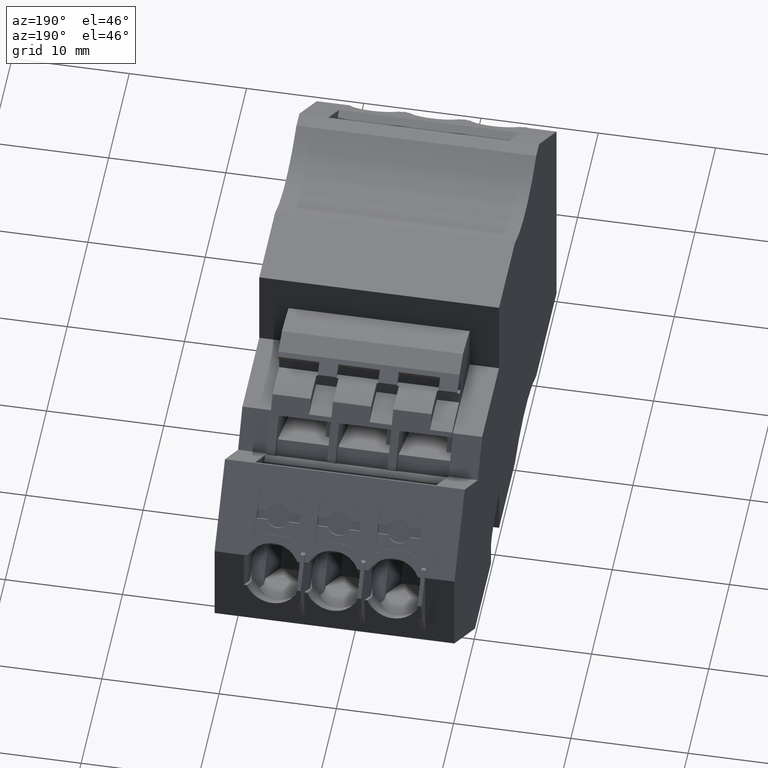
[diagram: clean part render]
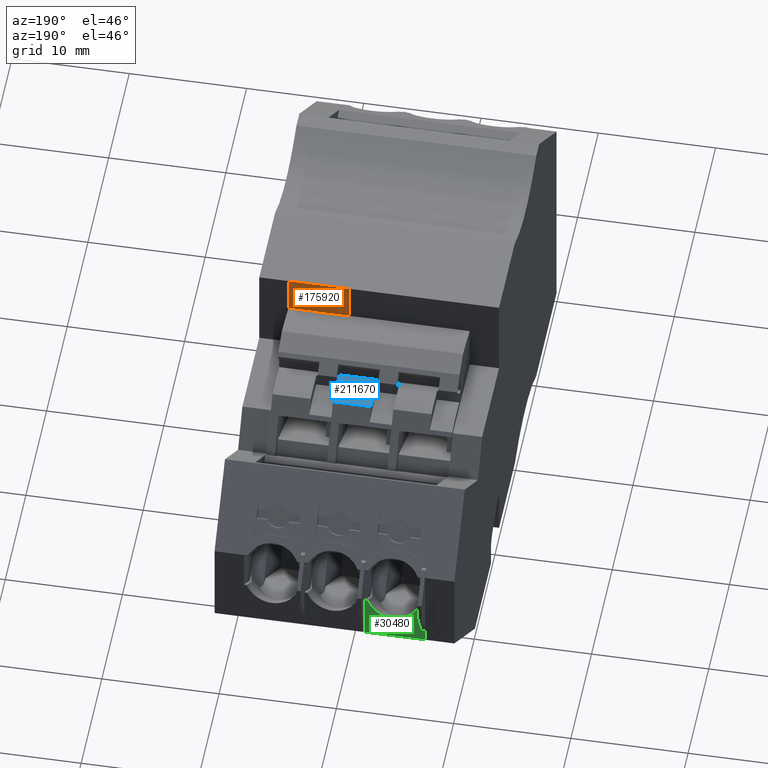
[diagram: same view with three faces highlighted in distinct colors, each labeled with its STEP entity id]
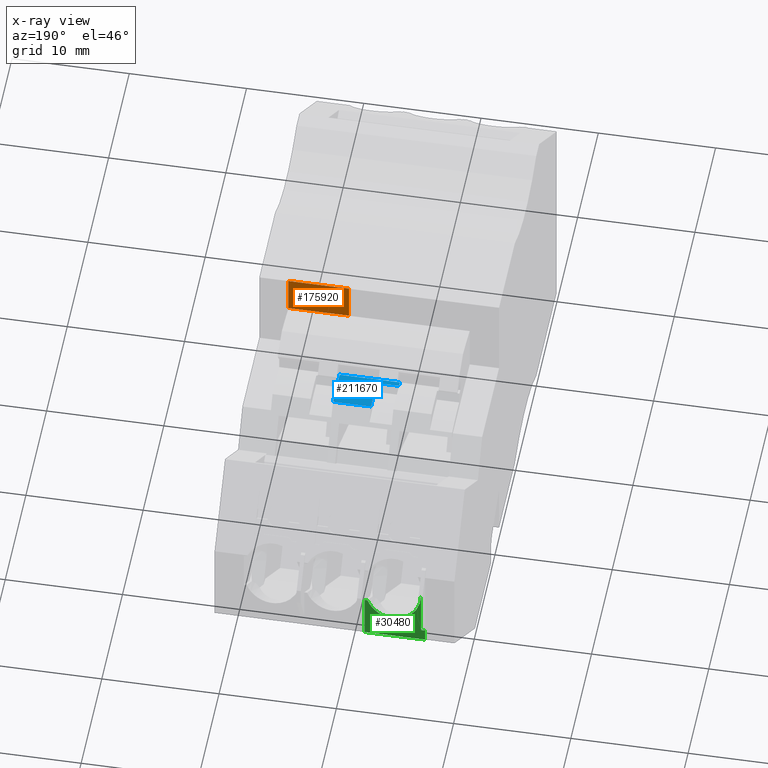
[diagram: x-ray of the same camera — body ghosted, the three highlighted faces saturated]
A machine part, auxiliary view with three faces highlighted in distinct colors.
The next image is the same camera in x-ray (body ghosted, the three faces saturated) — at least one of them is partly hidden behind the body in this view.
Their STEP definitions:

[orange] entity #175920 — the highlighted planar face has unit normal (0, -1, -0).
#1290=CARTESIAN_POINT('',(448.253158771589,658.650091524714,
83.5699999985983));
#1300=DIRECTION('',(1.20456350449744E-9,1.,-4.90742974502996E-10));
#1310=VECTOR('',#1300,1.);
#1320=LINE('',#1290,#1310);
#1330=CARTESIAN_POINT('',(448.253158814005,694.268032380059,
83.5699999802545));
#1340=VERTEX_POINT('',#1330);
#42870=CARTESIAN_POINT('',(448.253158777143,685.334852669852,
68.1199999910858));
#42880=DIRECTION('',(-1.,1.20456367118596E-9,2.84870068984393E-10));
#42890=DIRECTION('',(1.20456367103086E-9,1.,-5.44449162392391E-10));
#42900=AXIS2_PLACEMENT_3D('',#42870,#42880,#42890);
#42910=PLANE('',#42900);
#42920=CARTESIAN_POINT('',(448.253158789038,694.268032378539,
93.8699999782396));
#42930=DIRECTION('',(1.6669925506053E-10,4.90742847764455E-10,1.));
#42940=VECTOR('',#42930,1.);
#42950=LINE('',#42920,#42940);
#43100=CARTESIAN_POINT('',(448.253158793919,697.534347612595,
88.7199999827284));
#43110=DIRECTION('',(9.42661032482955E-11,-5.6928153239199E-10,-1.));
#43120=VECTOR('',#43110,1.);
#43130=LINE('',#43100,#43120);
#98100=CARTESIAN_POINT('',(448.253158790838,694.268032370957,
78.4199999845269));
#98110=VERTEX_POINT('',#98100);
#98140=CARTESIAN_POINT('',(448.253158781262,686.318603584635,
78.4199999891801));
#98150=DIRECTION('',(1.20456367103084E-9,1.,-5.85356141199928E-10));
#98160=VECTOR('',#98150,1.);
#98170=LINE('',#98140,#98160);
#98180=CARTESIAN_POINT('',(448.253158794772,697.534347612269,
78.4199999826149));
#98190=VERTEX_POINT('',#98180);
#98200=EDGE_CURVE('',#98110,#98190,#98170,.T.);
#141300=EDGE_CURVE('',#98110,#1340,#42950,.T.);
#175820=ORIENTED_EDGE('',*,*,#141300,.F.);
#175830=CARTESIAN_POINT('',(448.253158796239,697.534347630162,
83.5699999826149));
#175840=VERTEX_POINT('',#175830);
#175850=EDGE_CURVE('',#1340,#175840,#1320,.T.);
#175860=ORIENTED_EDGE('',*,*,#175850,.F.);
#175870=EDGE_CURVE('',#175840,#98190,#43130,.T.);
#175880=ORIENTED_EDGE('',*,*,#175870,.F.);
#175890=ORIENTED_EDGE('',*,*,#98200,.T.);
#175900=EDGE_LOOP('',(#175890,#175880,#175860,#175820));
#175910=FACE_OUTER_BOUND('',#175900,.T.);
#175920=ADVANCED_FACE('',(#175910),#42910,.F.);

[blue] entity #211670 — the highlighted cylindrical surface (partial cylindrical patch) has radius 13.3751 mm, axis along (1, 0, -0).
#54960=CARTESIAN_POINT('',(453.243876127628,691.793316213541,
78.4199999855799));
#54970=VERTEX_POINT('',#54960);
#55000=CARTESIAN_POINT('',(454.4346494077,678.471305699857,
78.4199999932837));
#55010=DIRECTION('',(1.6669925506053E-10,4.90742847764455E-10,1.));
#55020=DIRECTION('',(1.,-1.37460914872996E-9,-1.66698987061486E-10));
#55030=AXIS2_PLACEMENT_3D('',#55000,#55010,#55020);
#55040=CIRCLE('',#55030,13.3751226241374);
#55050=CARTESIAN_POINT('',(455.987225887647,691.756011622915,
78.4199999853845));
#55060=VERTEX_POINT('',#55050);
#55070=EDGE_CURVE('',#55060,#54970,#55040,.T.);
#56160=CARTESIAN_POINT('',(452.770448991071,691.742490363506,
93.869999978726));
#56170=DIRECTION('',(1.6669925506053E-10,4.90742847764455E-10,1.));
#56180=VECTOR('',#56170,1.);
#56190=LINE('',#56160,#56180);
#56200=CARTESIAN_POINT('',(452.770448987637,691.742490353396,
73.2699999870484));
#56210=VERTEX_POINT('',#56200);
#88030=CARTESIAN_POINT('',(453.243876128353,691.793316212804,
75.1699999837828));
#88040=VERTEX_POINT('',#88030);
#88220=CARTESIAN_POINT('',(455.987225888039,691.756011620878,
75.1699999833438));
#88230=VERTEX_POINT('',#88220);
#88260=CARTESIAN_POINT('',(454.434649412292,678.471305696482,
75.169999990122));
#88270=DIRECTION('',(-1.6669925506053E-10,-4.90742847764455E-10,-1.));
#88280=DIRECTION('',(1.,-1.37460914872996E-9,-1.66698987061486E-10));
#88290=AXIS2_PLACEMENT_3D('',#88260,#88270,#88280);
#88300=CIRCLE('',#88290,13.3751226241374);
#88310=EDGE_CURVE('',#88040,#88230,#88300,.T.);
#109770=CARTESIAN_POINT('',(453.205781663047,692.229908539389,
75.1699999843602));
#109780=DIRECTION('',(-0.9962149608102,-0.0869238279065691,
4.1877414416074E-11));
#109790=DIRECTION('',(0.0869238279065691,-0.996214960810201,
4.17194436607689E-10));
#109800=AXIS2_PLACEMENT_3D('',#109770,#109780,#109790);
#109810=PLANE('',#109800);
#109910=CARTESIAN_POINT('',(454.434649412834,678.471305698077,
78.4199999878407));
#109920=DIRECTION('',(1.6669925506053E-10,4.90742847764455E-10,1.));
#109930=DIRECTION('',(1.,-1.37460914872996E-9,-1.66698987061486E-10));
#109940=AXIS2_PLACEMENT_3D('',#109910,#109920,#109930);
#109950=CYLINDRICAL_SURFACE('',#109940,13.3751226241374);
#109960=CARTESIAN_POINT('',(453.243876128352,691.793316211899,
73.2699999862153));
#109970=CARTESIAN_POINT('',(453.243876128352,691.793316211975,
73.4283333193459));
#109980=CARTESIAN_POINT('',(453.243876128352,691.79331621205,
73.5866666524765));
#109990=CARTESIAN_POINT('',(453.243876128352,691.793316212125,
73.7449999856071));
#110000=CARTESIAN_POINT('',(453.243876128352,691.793316212201,
73.9033333187378));
#110010=CARTESIAN_POINT('',(453.243876128352,691.793316212276,
74.0616666518684));
#110020=CARTESIAN_POINT('',(453.243876128352,691.793316212351,
74.219999984999));
#110030=CARTESIAN_POINT('',(453.243876128352,691.793316212427,
74.3783333181296));
#110040=CARTESIAN_POINT('',(453.243876128353,691.793316212502,
74.5366666512602));
#110050=CARTESIAN_POINT('',(453.243876128353,691.793316212577,
74.6949999843908));
#110060=CARTESIAN_POINT('',(453.243876128353,691.793316212653,
74.8533333175214));
#110070=CARTESIAN_POINT('',(453.243876128353,691.793316212728,
75.0116666506521));
#110080=CARTESIAN_POINT('',(453.243876128353,691.793316212803,
75.1699999837827));
#110090=B_SPLINE_CURVE_WITH_KNOTS('',3,(#109960,#109970,#109980,#109990,
#110000,#110010,#110020,#110030,#110040,#110050,#110060,#110070,#110080)
,.UNSPECIFIED.,.F.,.F.,(4,3,3,3,4),(0.,0.474999999391869,
0.949999998783738,1.42499999817559,1.89999999756745),.UNSPECIFIED.);
#110100=SURFACE_CURVE('',#110090,(#109950,#109810),.CURVE_3D.);
#110110=CARTESIAN_POINT('',(453.243876128416,691.79331621116,
73.2699999855799));
#110120=VERTEX_POINT('',#110110);
#110130=EDGE_CURVE('',#110120,#88040,#110100,.T.);
#158750=CARTESIAN_POINT('',(454.434649410275,678.471305707439,
93.8699999849613));
#158760=DIRECTION('',(1.6669925506053E-10,4.90742847764455E-10,1.));
#158770=DIRECTION('',(1.,-1.37460914872996E-9,-1.66698987061486E-10));
#158780=AXIS2_PLACEMENT_3D('',#158750,#158760,#158770);
#158790=CYLINDRICAL_SURFACE('',#158780,13.3751226241374);
#159270=CARTESIAN_POINT('',(454.434649406841,678.471305697329,
73.2699999932837));
#159280=DIRECTION('',(1.6669925506053E-10,4.90742847764455E-10,1.));
#159290=DIRECTION('',(1.,-1.37460914872996E-9,-1.66698987061486E-10));
#159300=AXIS2_PLACEMENT_3D('',#159270,#159280,#159290);
#159310=CIRCLE('',#159300,13.3751226241374);
#159320=EDGE_CURVE('',#110120,#56210,#159310,.T.);
#160980=CARTESIAN_POINT('',(455.987225887865,691.756011622557,
78.4199999810625));
#160990=DIRECTION('',(1.6669925506053E-10,4.90742847764455E-10,1.));
#161000=VECTOR('',#160990,1.);
#161010=LINE('',#160980,#161000);
#161020=EDGE_CURVE('',#88230,#55060,#161010,.T.);
#161600=CARTESIAN_POINT('',(452.770448988496,691.742490355924,
78.4199999870485));
#161610=VERTEX_POINT('',#161600);
#183190=EDGE_CURVE('',#56210,#161610,#56190,.T.);
#202280=CARTESIAN_POINT('',(454.4346494077,678.471305699857,
78.4199999932837));
#202290=DIRECTION('',(1.6669925506053E-10,4.90742847764455E-10,1.));
#202300=DIRECTION('',(1.,-1.37460914872996E-9,-1.66698987061486E-10));
#202310=AXIS2_PLACEMENT_3D('',#202280,#202290,#202300);
#202320=CIRCLE('',#202310,13.3751226241374);
#202330=EDGE_CURVE('',#54970,#161610,#202320,.T.);
#211580=ORIENTED_EDGE('',*,*,#183190,.T.);
#211590=ORIENTED_EDGE('',*,*,#159320,.T.);
#211600=ORIENTED_EDGE('',*,*,#110130,.F.);
#211610=ORIENTED_EDGE('',*,*,#88310,.F.);
#211620=ORIENTED_EDGE('',*,*,#161020,.F.);
#211630=ORIENTED_EDGE('',*,*,#55070,.F.);
#211640=ORIENTED_EDGE('',*,*,#202330,.F.);
#211650=EDGE_LOOP('',(#211640,#211630,#211620,#211610,#211600,#211590,
#211580));
#211660=FACE_OUTER_BOUND('',#211650,.T.);
#211670=ADVANCED_FACE('',(#211660),#158790,.T.);

[green] entity #30480 — the highlighted planar face has unit normal (0, 1, 0).
#7290=CARTESIAN_POINT('',(469.853158765259,678.981362835314,
68.1199999778021));
#7300=DIRECTION('',(9.53020393934754E-11,4.27434416588531E-10,1.));
#7310=VECTOR('',#7300,1.);
#7320=LINE('',#7290,#7310);
#7350=CARTESIAN_POINT('',(469.853158765259,678.981362835314,
68.1199999917637));
#7360=VERTEX_POINT('',#7350);
#12040=CARTESIAN_POINT('',(469.853158763758,677.735392965184,
68.119999991504));
#12050=DIRECTION('',(1.,-1.20455928570415E-9,-9.53020388786053E-11));
#12060=DIRECTION('',(-1.2045592856499E-9,-1.,5.69281613977681E-10));
#12070=AXIS2_PLACEMENT_3D('',#12040,#12050,#12060);
#12080=PLANE('',#12070);
#12090=CARTESIAN_POINT('',(469.85315876575,678.981362837515,
73.2699999917637));
#12100=VERTEX_POINT('',#12090);
#12500=CARTESIAN_POINT('',(469.853158769059,680.084428442291,
73.2699999911179));
#12510=VERTEX_POINT('',#12500);
#12540=CARTESIAN_POINT('',(469.853158800606,707.918603540623,
73.2699999748249));
#12550=DIRECTION('',(-1.20455923013874E-9,-1.,5.85356141199929E-10));
#12560=VECTOR('',#12550,1.);
#12570=LINE('',#12540,#12560);
#12580=EDGE_CURVE('',#12510,#12100,#12570,.T.);
#29960=EDGE_CURVE('',#7360,#12100,#7320,.T.);
#29970=ORIENTED_EDGE('',*,*,#29960,.F.);
#29980=ORIENTED_EDGE('',*,*,#12580,.T.);
#29990=CARTESIAN_POINT('',(469.853158800606,707.918603540623,
73.2699999748249));
#30000=DIRECTION('',(-1.20455923013874E-9,-1.,5.85356141199929E-10));
#30010=VECTOR('',#30000,1.);
#30020=LINE('',#29990,#30010);
#30030=CARTESIAN_POINT('',(469.853158773841,682.858422490987,
73.2699999894941));
#30040=VERTEX_POINT('',#30030);
#30050=EDGE_CURVE('',#30040,#12510,#30020,.T.);
#30060=ORIENTED_EDGE('',*,*,#30050,.T.);
#30070=CARTESIAN_POINT('',(469.85315877335,682.858422488768,
68.1199999980775));
#30080=DIRECTION('',(-9.53019266711848E-11,-4.30833375936485E-10,-1.));
#30090=VECTOR('',#30080,1.);
#30100=LINE('',#30070,#30090);
#30110=CARTESIAN_POINT('',(469.853158773818,682.858422490887,
73.0377407437715));
#30120=VERTEX_POINT('',#30110);
#30130=EDGE_CURVE('',#30040,#30120,#30100,.T.);
#30140=ORIENTED_EDGE('',*,*,#30130,.F.);
#30150=CARTESIAN_POINT('',(469.853158775421,684.202991998457,
70.8699999836472));
#30160=DIRECTION('',(-1.,1.34569982934711E-9,9.53016587669485E-11));
#30170=DIRECTION('',(-1.3456997738356E-9,-1.,5.66234217872958E-10));
#30180=AXIS2_PLACEMENT_3D('',#30150,#30160,#30170);
#30190=ELLIPSE('',#30180,3.1329774959167,2.40000000000534);
#30200=CARTESIAN_POINT('',(469.853158775193,684.202991997262,
68.4699999836418));
#30210=VERTEX_POINT('',#30200);
#30220=EDGE_CURVE('',#30210,#30120,#30190,.T.);
#30230=ORIENTED_EDGE('',*,*,#30220,.T.);
#30240=CARTESIAN_POINT('',(469.853158807107,707.91860354342,
68.4699999711607));
#30250=DIRECTION('',(-1.34569977383562E-9,-1.,5.2676273327318E-10));
#30260=VECTOR('',#30250,1.);
#30270=LINE('',#30240,#30260);
#30280=CARTESIAN_POINT('',(469.85315876965,680.084428438813,
68.4699999858229));
#30290=VERTEX_POINT('',#30280);
#30300=EDGE_CURVE('',#30210,#30290,#30270,.T.);
#30310=ORIENTED_EDGE('',*,*,#30300,.F.);
#30320=CARTESIAN_POINT('',(469.853158769617,680.084428438614,
68.1199999997583));
#30330=DIRECTION('',(-9.53019268574946E-11,-5.69281532136888E-10,-1.));
#30340=VECTOR('',#30330,1.);
#30350=LINE('',#30320,#30340);
#30360=CARTESIAN_POINT('',(469.853158766587,680.084428438614,
68.1199999911179));
#30370=VERTEX_POINT('',#30360);
#30380=EDGE_CURVE('',#30290,#30370,#30350,.T.);
#30390=ORIENTED_EDGE('',*,*,#30380,.F.);
#30400=CARTESIAN_POINT('',(469.853158800115,707.918603536159,
68.119999974825));
#30410=DIRECTION('',(-1.20455923013874E-9,-1.,5.85356141199929E-10));
#30420=VECTOR('',#30410,1.);
#30430=LINE('',#30400,#30420);
#30440=EDGE_CURVE('',#30370,#7360,#30430,.T.);
#30450=ORIENTED_EDGE('',*,*,#30440,.F.);
#30460=EDGE_LOOP('',(#30450,#30390,#30310,#30230,#30140,#30060,#29980,
#29970));
#30470=FACE_OUTER_BOUND('',#30460,.T.);
#30480=ADVANCED_FACE('',(#30470),#12080,.T.);